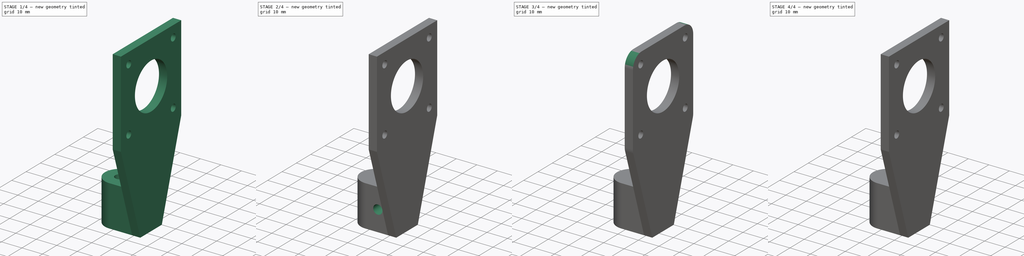
[diagram: build sequence overview — one tinted view per stage of 4, left to right]
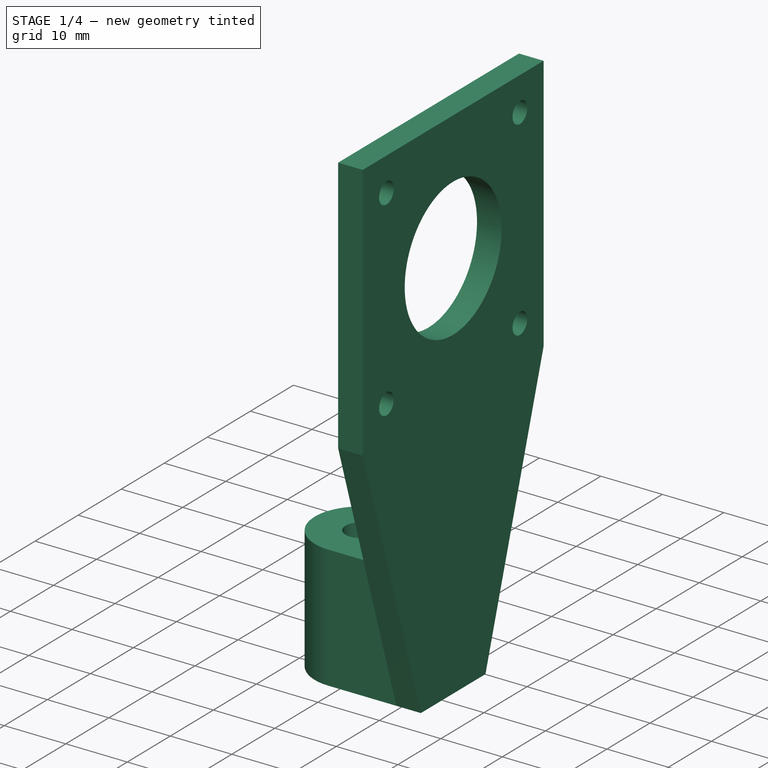
[diagram: stage 1 of 4 — iso view after this stage's code; geometry added in this stage tinted green]
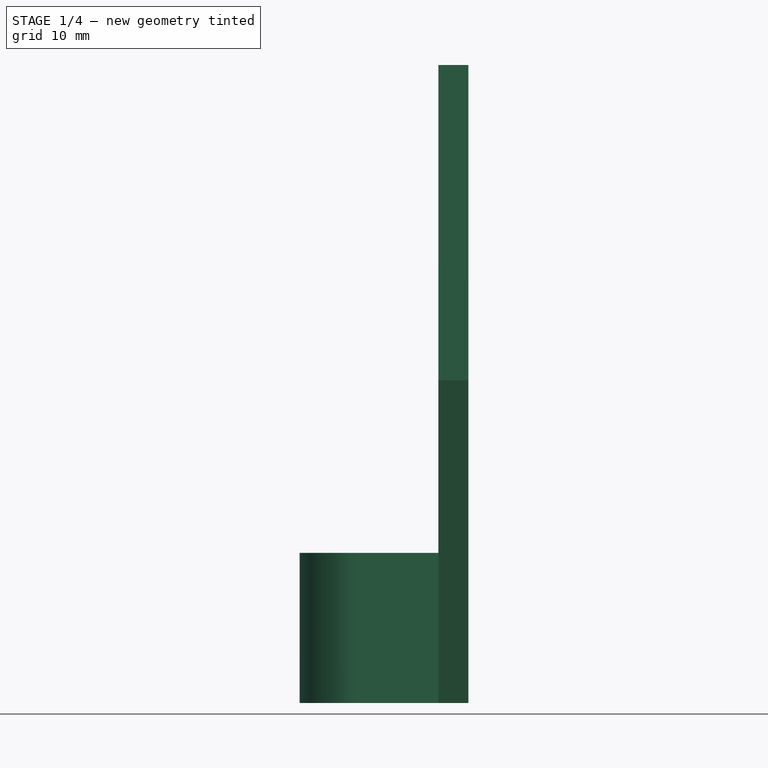
[diagram: stage 1 of 4 — front view after this stage's code; geometry added in this stage tinted green]
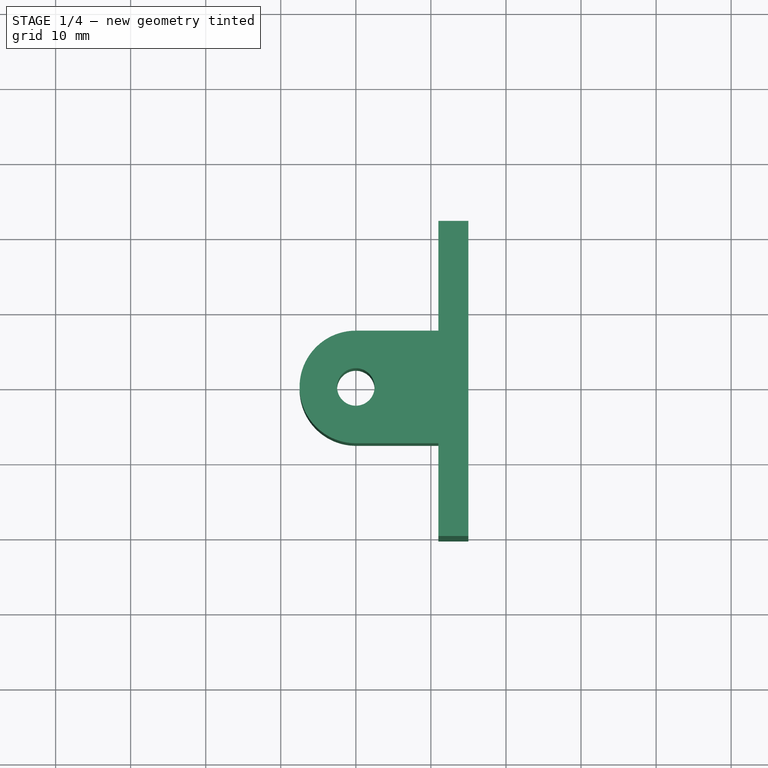
[diagram: stage 1 of 4 — top view after this stage's code; geometry added in this stage tinted green]
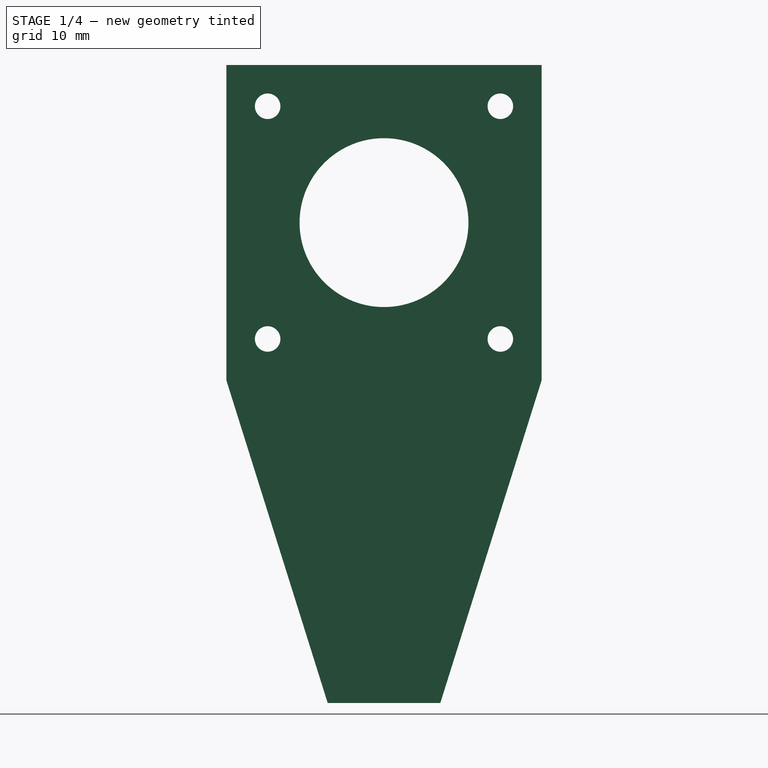
[diagram: stage 1 of 4 — right view after this stage's code; geometry added in this stage tinted green]
FCSTD DOCUMENT  (FreeCAD 2024.1R35694 (Git))
Label: arm0
License: All rights reserved
LicenseURL: https://en.wikipedia.org/wiki/All_rights_reserved
objects: Sketcher::SketchObject×11, PartDesign::Pad×6, PartDesign::Hole×3, PartDesign::Body×2, PartDesign::Pocket×2, PartDesign::Fillet×1, App::Part×1
note: 37 computed .brp shape members not serialized (recipe doc carries the construction recipe); baked Part::Feature solids carry a one-line shape summary decoded from their .brp

FEATURE [PartDesign::Body] Body  label="arm0-skel"
  Group = -> [Sketch,Pad,Sketch001,Pad001,Sketch003,Hole,Sketch004,Pad002]
  Origin = -> Origin001
  Tip = -> Pad002
FEATURE [Sketcher::SketchObject] Sketch008
  FullyConstrained = true
  MapMode = 5
  Support = -> [XY_Plane002]
  sketch-geometry (5):
    g0: Circle CenterX=0 CenterY=0 CenterZ=0 NormalX=0 NormalY=0 NormalZ=1 AngleXU=0 Radius=2.5
    g1: ArcOfCircle CenterX=0 CenterY=0 CenterZ=0 NormalX=0 NormalY=0 NormalZ=1 AngleXU=0 Radius=7.5 StartAngle=1.5708 EndAngle=4.71239
    g2: LineSegment StartX=-1.2e-15 StartY=7.5 StartZ=0 EndX=15 EndY=7.5 EndZ=0
    g3: LineSegment StartX=15 StartY=7.5 StartZ=0 EndX=15 EndY=-7.5 EndZ=0
    g4: LineSegment StartX=15 StartY=-7.5 StartZ=0 EndX=1.8e-15 EndY=-7.5 EndZ=0
  constraints (12):
    c: Coincident(g0,g-1)
    c: Coincident(g1,g0)
    c: Diameter(g0) = 5
    c: Diameter(g1) = 15
    c: Horizontal(g2)
    c: Coincident(g2,g3)
    c: Vertical(g3)
    c: Coincident(g3,g4)
    c: Horizontal(g4)
    c: Tangent(g1,g4) = 1.5708
    c: Tangent(g1,g2) = 1.5708
    c: DistanceX(g2,g2) = 15
FEATURE [PartDesign::Pad] Pad003
  Direction = (0,0,1)
  Length = 20
  Length2 = 10
  Profile = -> Sketch008
  ReferenceAxis = -> Sketch008 [N_Axis]
  Refine = true
  Type = 0
FEATURE [Sketcher::SketchObject] Sketch009
  ExternalGeometry = -> [Pad003]
  FullyConstrained = true
  MapMode = 5
  Placement = pos=(15,0,0) rot=(0.57735,0.57735,0.57735;2.0944rad)
  Support = -> [Pad003]
  sketch-geometry (8):
    g0: LineSegment StartX=-7.5 StartY=0 StartZ=0 EndX=-21 EndY=43 EndZ=0
    g1: LineSegment StartX=-21 StartY=43 StartZ=0 EndX=-21 EndY=85 EndZ=0
    g2: LineSegment StartX=-21 StartY=85 StartZ=0 EndX=21 EndY=85 EndZ=0
    g3: LineSegment StartX=21 StartY=85 StartZ=0 EndX=21 EndY=43 EndZ=0
    g4: LineSegment StartX=21 StartY=43 StartZ=0 EndX=7.5 EndY=0 EndZ=0
    g5: LineSegment StartX=7.5 StartY=0 StartZ=0 EndX=-7.5 EndY=0 EndZ=0
    g6: GeomPoint X=4.8e-15 Y=64 Z=0
    g7: Circle CenterX=4.8e-15 CenterY=64 CenterZ=0 NormalX=0 NormalY=0 NormalZ=1 AngleXU=0 Radius=11.25
  constraints (18):
    c: PointOnObject(g0,g-1)
    c: Coincident(g0,g1)
    c: Vertical(g1)
    c: Coincident(g1,g2)
    c: Coincident(g2,g3)
    c: Coincident(g3,g4)
    c: Coincident(g4,g5)
    c: Coincident(g5,g0)
    c: Symmetric(g0,g3,g-2)
    c: Symmetric(g1,g2,g-2)
    c: DistanceX(g2,g2) = 42
    c: DistanceY(g3,g3) = 42
    c: Symmetric(g0,g4,g-2)
    c: DistanceX(g5,g5) = 15
    c: Symmetric(g1,g3,g6)
    c: Coincident(g7,g6)
    c: Diameter(g7) = 22.5
    c: DistanceY(g-1,g3) = 43
FEATURE [PartDesign::Pad] Pad004
  BaseFeature = -> Pad003
  Direction = (1,0,0)
  Length = 4
  Length2 = 10
  Profile = -> Sketch009
  ReferenceAxis = -> Sketch009 [N_Axis]
  Refine = true
  Reversed = true
  Type = 0
FEATURE [Sketcher::SketchObject] Sketch010
  ExternalGeometry = -> [Pad004]
  FullyConstrained = true
  MapMode = 5
  Placement = pos=(11,0,0) rot=(0.57735,-0.57735,-0.57735;2.0944rad)
  Support = -> [Pad004]
  sketch-geometry (5):
    g0: Circle CenterX=15.5 CenterY=79.5 CenterZ=0 NormalX=0 NormalY=0 NormalZ=1 AngleXU=0 Radius=1.5
    g1: LineSegment StartX=-4.8e-15 StartY=64 StartZ=0 EndX=11.25 EndY=64 EndZ=0
    g2: Circle CenterX=-15.5 CenterY=79.5 CenterZ=0 NormalX=0 NormalY=0 NormalZ=1 AngleXU=0 Radius=1.5
    g3: Circle CenterX=15.5 CenterY=48.5 CenterZ=0 NormalX=0 NormalY=0 NormalZ=1 AngleXU=0 Radius=1.5
    g4: Circle CenterX=-15.5 CenterY=48.5 CenterZ=0 NormalX=0 NormalY=0 NormalZ=1 AngleXU=0 Radius=1.5
  constraints (12):
    c: DistanceY(g-3,g0) = 15.5
    c: DistanceX(g-3,g0) = 15.5
    c: Diameter(g0) = 3
    c: Coincident(g1,g-3)
    c: Horizontal(g1)
    c: PointOnObject(g1,g-3)
    c: Diameter(g2) = 3
    c: Diameter(g3) = 3
    c: Diameter(g4) = 3
    c: Symmetric(g2,g0,g-2)
    c: Symmetric(g4,g3,g-2)
    c: Symmetric(g3,g0,g1)
FEATURE [PartDesign::Hole] Hole002
  BaseFeature = -> Pad004
  CustomThreadClearance = 0
  Depth = 25
  DepthType = 0
  Diameter = 3.4
  DrillForDepth = false
  DrillPoint = 1
  DrillPointAngle = 118
  HoleCutCountersinkAngle = 90
  HoleCutCustomValues = false
  HoleCutDepth = 2
  HoleCutDiameter = 6.1
  HoleCutType = 1
  ModelThread = false
  Profile = -> Sketch010
  Refine = true
  Tapered = false
  TaperedAngle = 90
  ThreadClass = 0
  ThreadDepth = 25
  ThreadDepthType = 0
  ThreadDirection = 0
  ThreadFit = 0
  ThreadSize = 9
  ThreadType = 1
  Threaded = false
  UseCustomThreadClearance = false
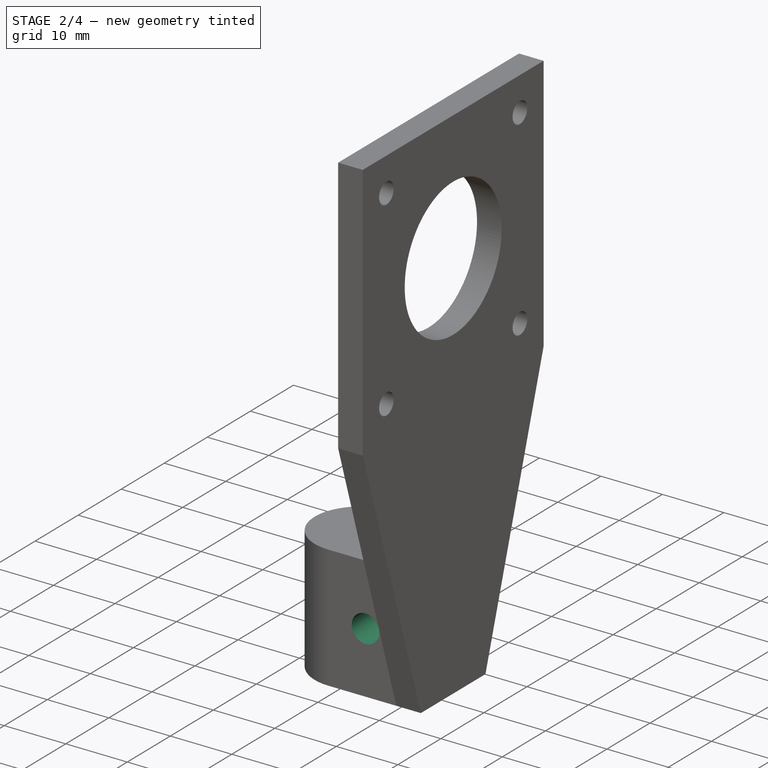
[diagram: stage 2 of 4 — iso view after this stage's code; geometry added in this stage tinted green]
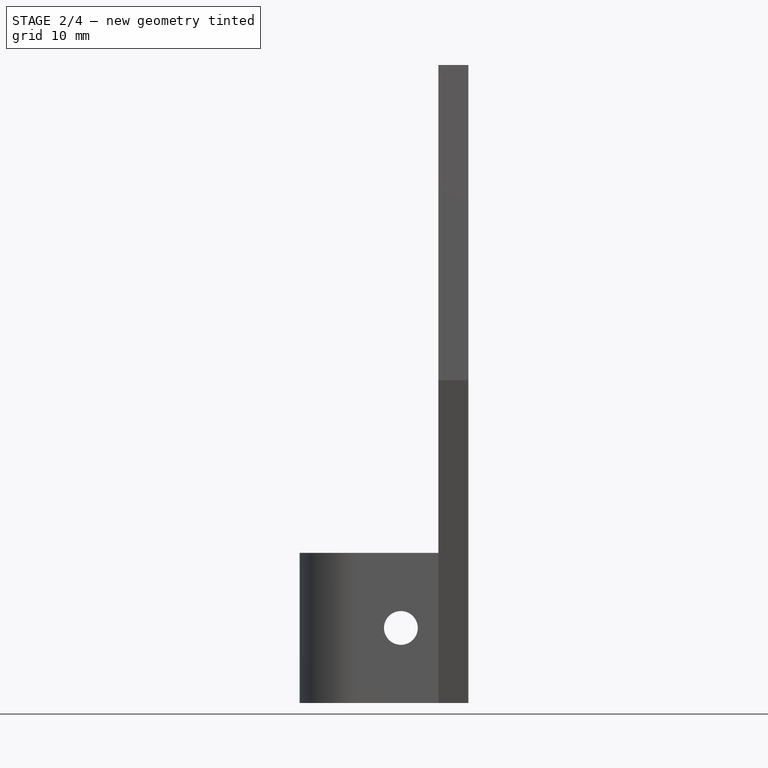
[diagram: stage 2 of 4 — front view after this stage's code; geometry added in this stage tinted green]
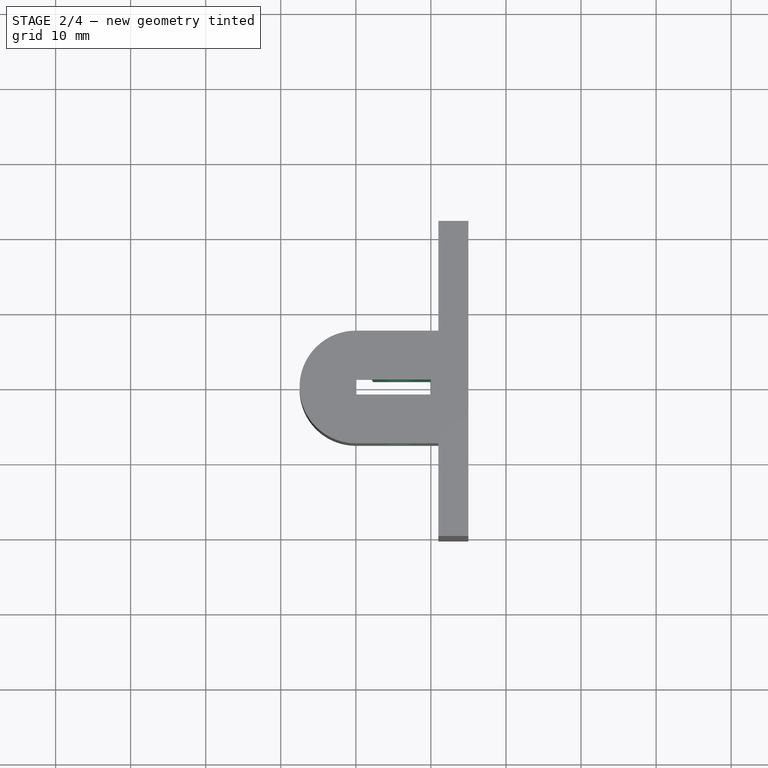
[diagram: stage 2 of 4 — top view after this stage's code; geometry added in this stage tinted green]
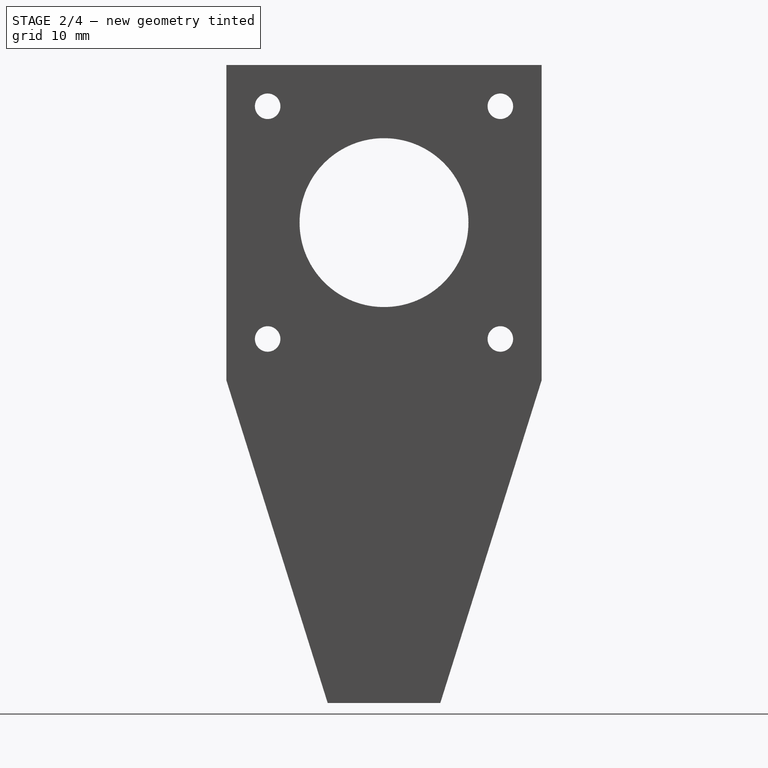
[diagram: stage 2 of 4 — right view after this stage's code; geometry added in this stage tinted green]
FEATURE [Sketcher::SketchObject] Sketch011
  ExternalGeometry = -> [Hole002]
  FullyConstrained = true
  MapMode = 5
  Placement = pos=(0,0,20) rot=(0,0,1;0rad)
  Support = -> [Hole002]
  sketch-geometry (1):
    g0: Circle CenterX=0 CenterY=0 CenterZ=0 NormalX=0 NormalY=0 NormalZ=1 AngleXU=0 Radius=2.5
  constraints (2):
    c: Coincident(g0,g-3)
    c: Equal(g0,g-3)
FEATURE [PartDesign::Pad] Pad005
  BaseFeature = -> Hole002
  Direction = (0,0,1)
  Length = 2
  Length2 = 10
  Profile = -> Sketch011
  ReferenceAxis = -> Sketch011 [N_Axis]
  Refine = true
  Reversed = true
  Type = 0
FEATURE [Sketcher::SketchObject] Sketch012
  FullyConstrained = true
  MapMode = 5
  Placement = pos=(0,0,0) rot=(1,0,0;3.14159rad)
  Support = -> [Pad005]
  sketch-geometry (4):
    g0: LineSegment StartX=0 StartY=1 StartZ=0 EndX=0 EndY=-1 EndZ=0
    g1: LineSegment StartX=0 StartY=-1 StartZ=0 EndX=10 EndY=-1 EndZ=0
    g2: LineSegment StartX=10 StartY=-1 StartZ=0 EndX=10 EndY=1 EndZ=0
    g3: LineSegment StartX=10 StartY=1 StartZ=0 EndX=0 EndY=1 EndZ=0
  constraints (11):
    c: Coincident(g0,g1)
    c: Coincident(g1,g2)
    c: Coincident(g2,g3)
    c: Coincident(g3,g0)
    c: Vertical(g0)
    c: Horizontal(g1)
    c: Horizontal(g3)
    c: PointOnObject(g0,g-2)
    c: Symmetric(g1,g2,g-1)
    c: DistanceY(g2,g2) = 2
    c: DistanceX(g3,g3) = 10
FEATURE [PartDesign::Pocket] Pocket002
  BaseFeature = -> Pad005
  Direction = (0,0,1)
  Length = 5
  Length2 = 5
  Profile = -> Sketch012
  ReferenceAxis = -> Sketch012 [N_Axis]
  Refine = true
  Type = 1
FEATURE [Sketcher::SketchObject] Sketch013
  FullyConstrained = true
  MapMode = 5
  Placement = pos=(0,-7.5,0) rot=(1,0,0;1.5708rad)
  Support = -> [Pocket002]
  sketch-geometry (1):
    g0: Circle CenterX=6 CenterY=10 CenterZ=0 NormalX=0 NormalY=0 NormalZ=1 AngleXU=0 Radius=1.5
  constraints (3):
    c: DistanceY(g-1,g0) = 10
    c: DistanceX(g-1,g0) = 6
    c: Diameter(g0) = 3
FEATURE [PartDesign::Hole] Hole003
  BaseFeature = -> Pocket002
  CustomThreadClearance = 0
  Depth = 25
  DepthType = 0
  Diameter = 4.5
  DrillForDepth = false
  DrillPoint = 1
  DrillPointAngle = 118
  HoleCutCountersinkAngle = 90
  HoleCutCustomValues = false
  HoleCutDepth = 0
  HoleCutDiameter = 6.1
  HoleCutType = 0
  ModelThread = false
  Profile = -> Sketch013
  Refine = true
  Tapered = false
  TaperedAngle = 90
  ThreadClass = 0
  ThreadDepth = 25
  ThreadDepthType = 0
  ThreadDirection = 0
  ThreadFit = 0
  ThreadSize = 11
  ThreadType = 1
  Threaded = false
  UseCustomThreadClearance = false
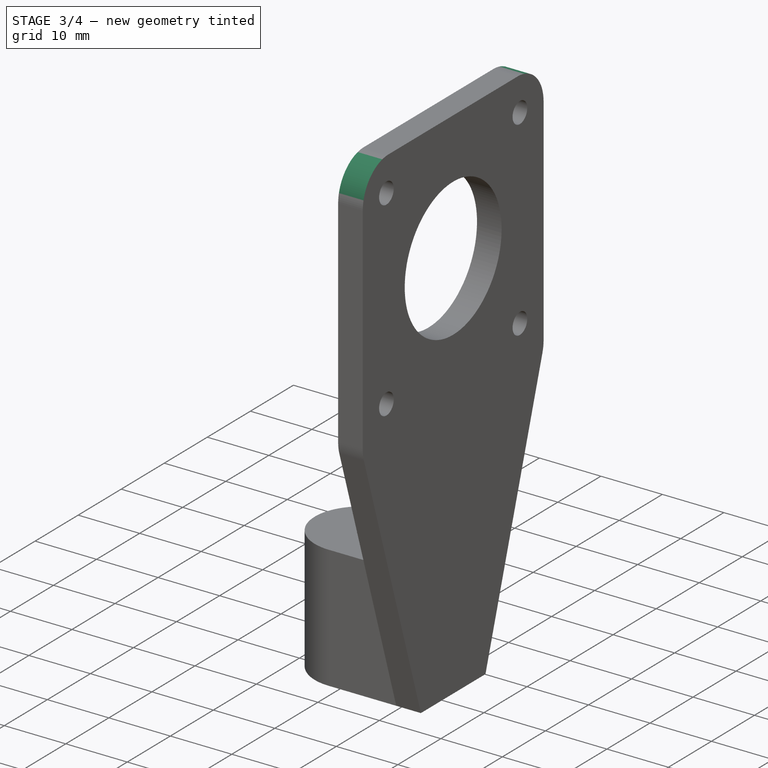
[diagram: stage 3 of 4 — iso view after this stage's code; geometry added in this stage tinted green]
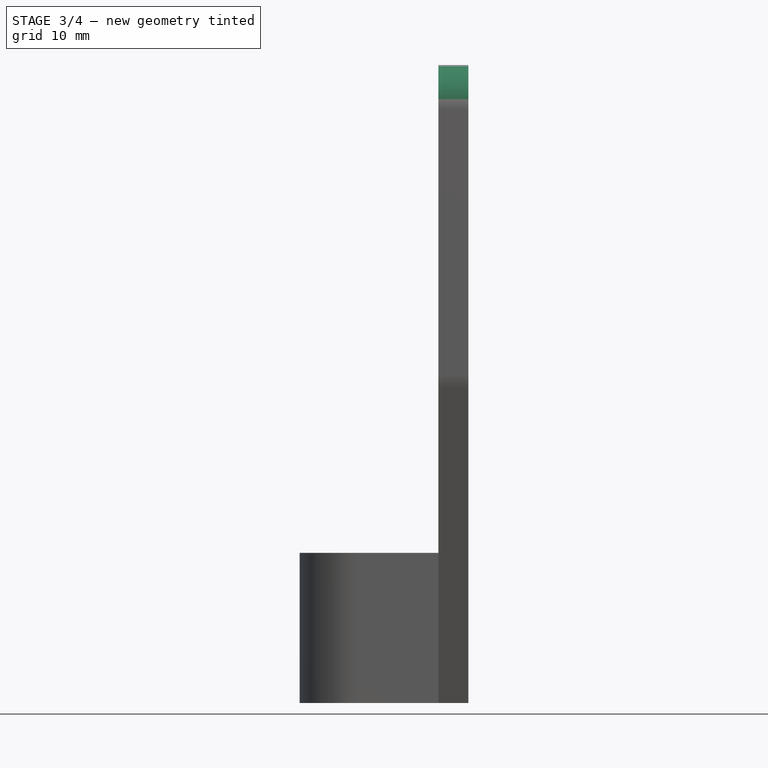
[diagram: stage 3 of 4 — front view after this stage's code; geometry added in this stage tinted green]
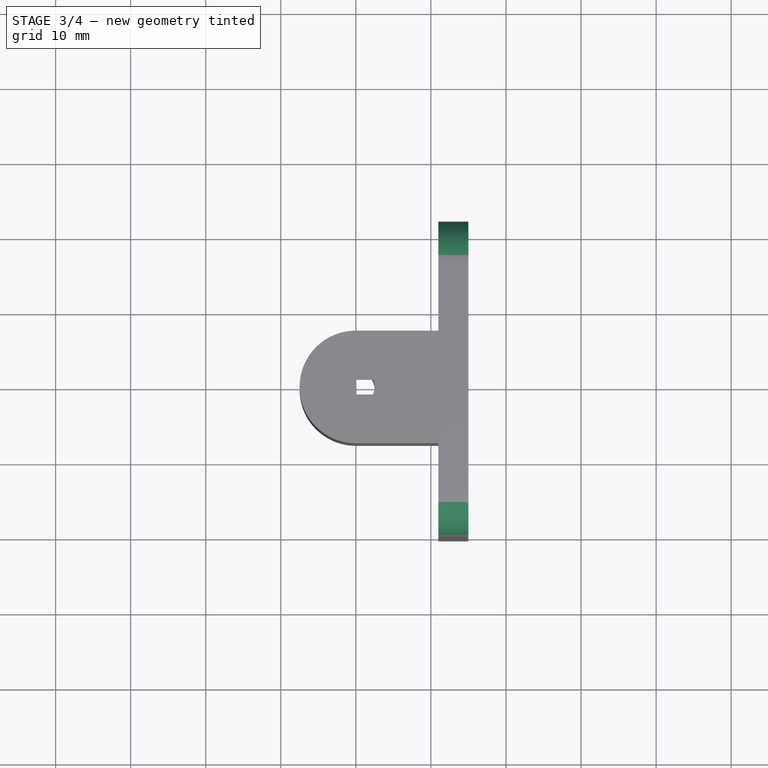
[diagram: stage 3 of 4 — top view after this stage's code; geometry added in this stage tinted green]
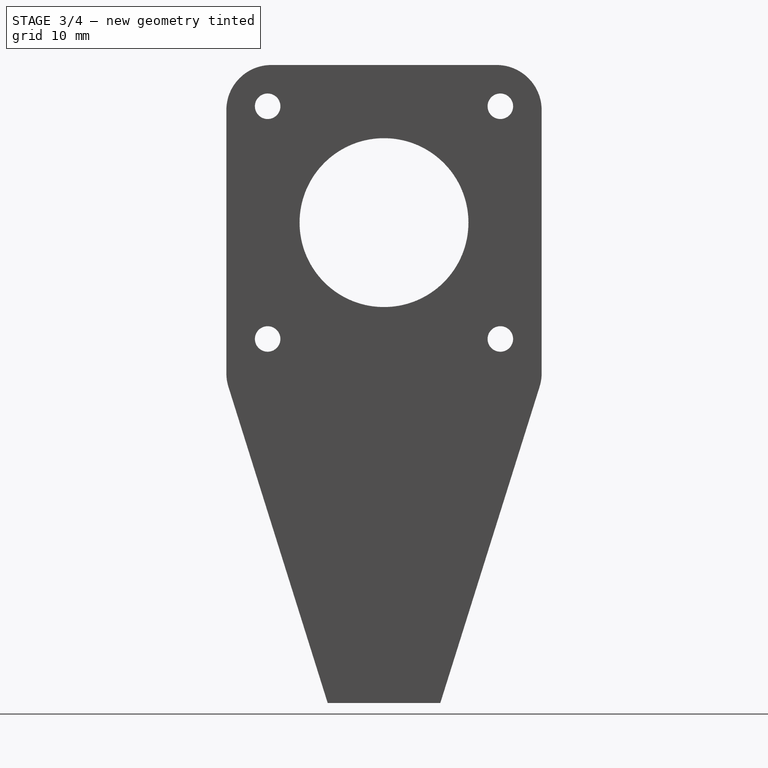
[diagram: stage 3 of 4 — right view after this stage's code; geometry added in this stage tinted green]
FEATURE [Sketcher::SketchObject] Sketch
  FullyConstrained = true
  MapMode = 5
  Support = -> [XY_Plane001]
  sketch-geometry (5):
    g0: Circle CenterX=0 CenterY=0 CenterZ=0 NormalX=0 NormalY=0 NormalZ=1 AngleXU=0 Radius=2.5
    g1: ArcOfCircle CenterX=0 CenterY=0 CenterZ=0 NormalX=0 NormalY=0 NormalZ=1 AngleXU=0 Radius=7.5 StartAngle=1.5708 EndAngle=4.71239
    g2: LineSegment StartX=-1.2e-15 StartY=7.5 StartZ=0 EndX=15 EndY=7.5 EndZ=0
    g3: LineSegment StartX=15 StartY=7.5 StartZ=0 EndX=15 EndY=-7.5 EndZ=0
    g4: LineSegment StartX=15 StartY=-7.5 StartZ=0 EndX=1.8e-15 EndY=-7.5 EndZ=0
  constraints (12):
    c: Coincident(g0,g-1)
    c: Coincident(g1,g0)
    c: Diameter(g0) = 5
    c: Diameter(g1) = 15
    c: Horizontal(g2)
    c: Coincident(g2,g3)
    c: Vertical(g3)
    c: Coincident(g3,g4)
    c: Horizontal(g4)
    c: Tangent(g1,g4) = 1.5708
    c: Tangent(g1,g2) = 1.5708
    c: DistanceX(g2,g2) = 15
FEATURE [PartDesign::Pad] Pad
  Direction = (0,0,1)
  Length = 20
  Length2 = 10
  Profile = -> Sketch
  ReferenceAxis = -> Sketch [N_Axis]
  Refine = true
  Type = 0
FEATURE [Sketcher::SketchObject] Sketch014
  ExternalGeometry = -> [Hole003]
  FullyConstrained = true
  MapMode = 5
  Placement = pos=(0,7.5,0) rot=(0,0.707107,0.707107;3.14159rad)
  Support = -> [Hole003]
  sketch-geometry (7):
    g0: LineSegment StartX=-1.95855 StartY=10 StartZ=0 EndX=-3.97927 EndY=13.5 EndZ=0
    g1: LineSegment StartX=-3.97927 StartY=13.5 StartZ=0 EndX=-8.02073 EndY=13.5 EndZ=0
    g2: LineSegment StartX=-8.02073 StartY=13.5 StartZ=0 EndX=-10.0415 EndY=10 EndZ=0
    g3: LineSegment StartX=-10.0415 StartY=10 StartZ=0 EndX=-8.02073 EndY=6.5 EndZ=0
    g4: LineSegment StartX=-8.02073 StartY=6.5 StartZ=0 EndX=-3.97927 EndY=6.5 EndZ=0
    g5: LineSegment StartX=-3.97927 StartY=6.5 StartZ=0 EndX=-1.95855 EndY=10 EndZ=0
    g6: Circle CenterX=-6 CenterY=10 CenterZ=0 NormalX=0 NormalY=0 NormalZ=1 AngleXU=0 Radius=4.04145
  constraints (16):
    c: Coincident(g0,g1)
    c: Coincident(g1,g2)
    c: Coincident(g2,g3)
    c: Coincident(g3,g4)
    c: Coincident(g4,g5)
    c: Coincident(g5,g0)
    c: Equal(g0, g1-g5) x5
    c: PointOnObject(g0,g6)
    c: PointOnObject(g1,g6)
    c: PointOnObject(g2,g6)
    c: PointOnObject(g3,g6)
    c: PointOnObject(g4,g6)
    c: PointOnObject(g5,g6)
    c: Coincident(g6,g-3)
    c: Horizontal(g1)
    c: DistanceY(g4,g0) = 7
FEATURE [PartDesign::Pocket] Pocket003
  BaseFeature = -> Hole003
  Direction = (0,-1,2e-16)
  Length = 4
  Length2 = 5
  Profile = -> Sketch014
  ReferenceAxis = -> Sketch014 [N_Axis]
  Refine = true
  Type = 0
FEATURE [PartDesign::Fillet] Fillet
  Base = -> Pocket003 [Edge77,Edge78,Edge65,Edge54]
  BaseFeature = -> Pocket003
  Radius = 6
  Refine = true
  SupportTransform = false
  UseAllEdges = false
FEATURE [PartDesign::Body] Body001  label="arm0s"
  Group = -> [Sketch008,Pad003,Sketch009,Pad004,Sketch010,Hole002,Sketch011,Pad005,Sketch012,Pocket002,Sketch013,Hole003,Sketch014,Pocket003,Fillet]
  Origin = -> Origin002
  Tip = -> Fillet
FEATURE [App::Part] Part  label="arm0"
  Group = -> [Body,Body001]
  Origin = -> Origin
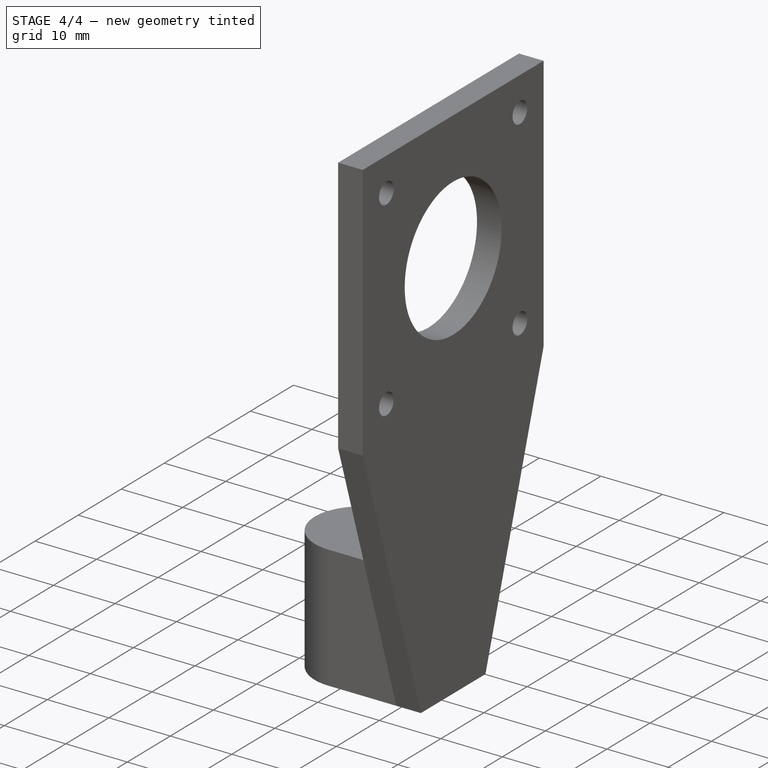
[diagram: stage 4 of 4 — iso view after this stage's code; geometry added in this stage tinted green]
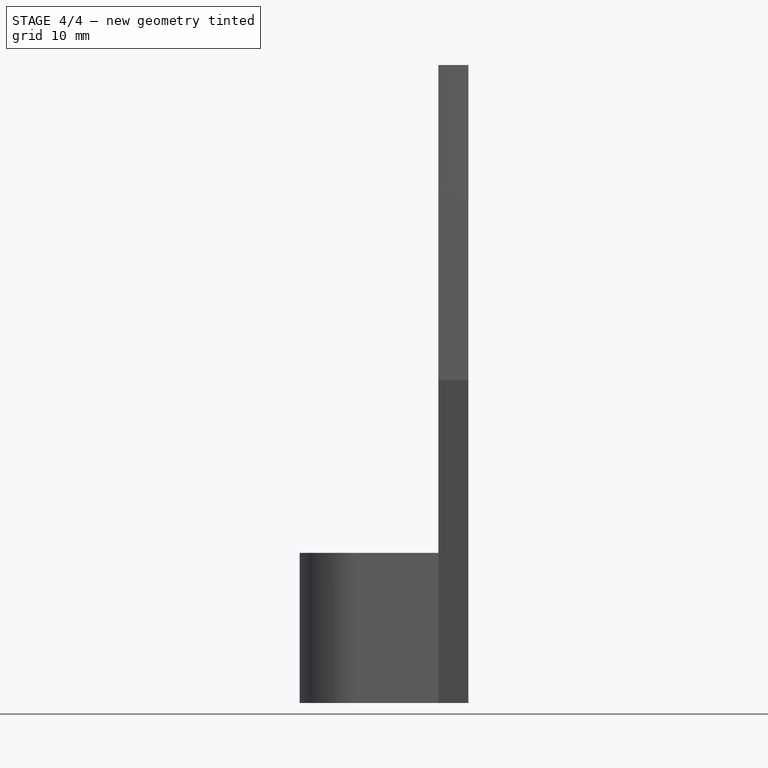
[diagram: stage 4 of 4 — front view after this stage's code; geometry added in this stage tinted green]
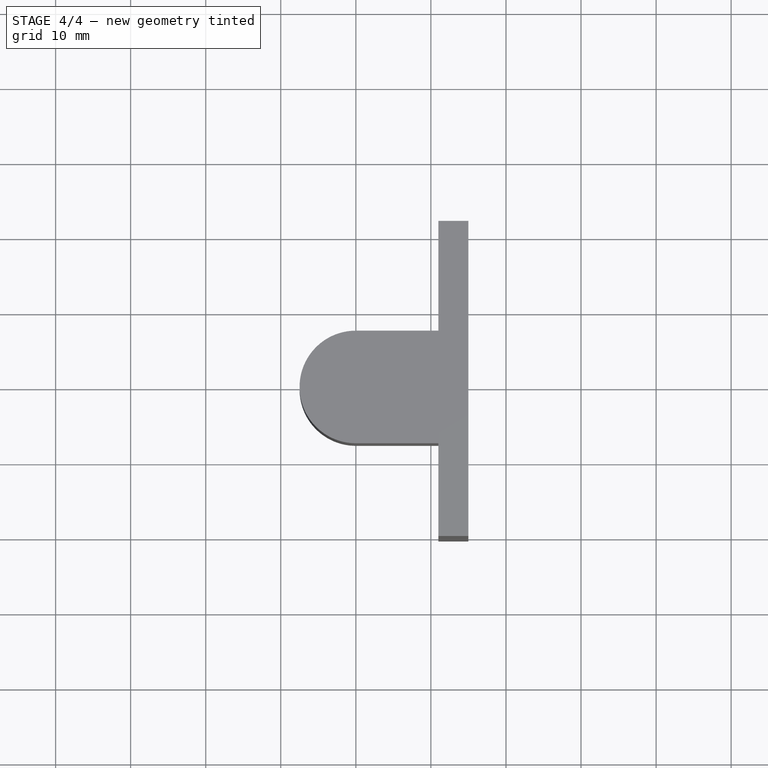
[diagram: stage 4 of 4 — top view after this stage's code; geometry added in this stage tinted green]
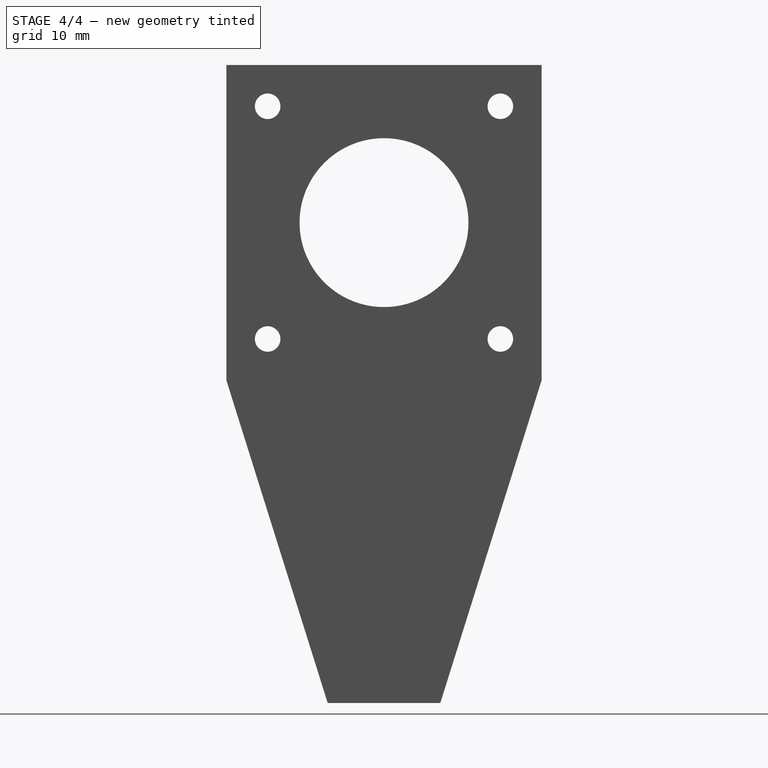
[diagram: stage 4 of 4 — right view after this stage's code; geometry added in this stage tinted green]
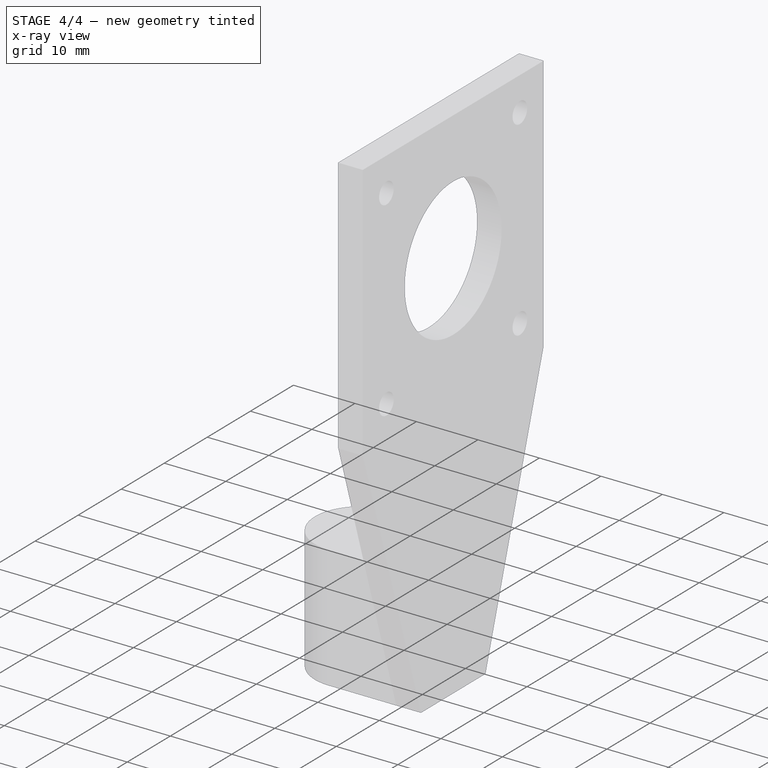
[diagram: stage 4 of 4 — x-ray composite at the iso view; earlier geometry ghosted, this stage's added geometry solid]
FEATURE [Sketcher::SketchObject] Sketch001
  ExternalGeometry = -> [Pad]
  FullyConstrained = true
  MapMode = 5
  Placement = pos=(15,0,0) rot=(0.57735,0.57735,0.57735;2.0944rad)
  Support = -> [Pad]
  sketch-geometry (8):
    g0: LineSegment StartX=-7.5 StartY=0 StartZ=0 EndX=-21 EndY=43 EndZ=0
    g1: LineSegment StartX=-21 StartY=43 StartZ=0 EndX=-21 EndY=85 EndZ=0
    g2: LineSegment StartX=-21 StartY=85 StartZ=0 EndX=21 EndY=85 EndZ=0
    g3: LineSegment StartX=21 StartY=85 StartZ=0 EndX=21 EndY=43 EndZ=0
    g4: LineSegment StartX=21 StartY=43 StartZ=0 EndX=7.5 EndY=0 EndZ=0
    g5: LineSegment StartX=7.5 StartY=0 StartZ=0 EndX=-7.5 EndY=0 EndZ=0
    g6: GeomPoint X=5.2e-15 Y=64 Z=0
    g7: Circle CenterX=5.2e-15 CenterY=64 CenterZ=0 NormalX=0 NormalY=0 NormalZ=1 AngleXU=0 Radius=11.25
  constraints (18):
    c: PointOnObject(g0,g-1)
    c: Coincident(g0,g1)
    c: Vertical(g1)
    c: Coincident(g1,g2)
    c: Coincident(g2,g3)
    c: Coincident(g3,g4)
    c: Coincident(g4,g5)
    c: Coincident(g5,g0)
    c: Symmetric(g0,g3,g-2)
    c: Symmetric(g1,g2,g-2)
    c: DistanceX(g2,g2) = 42
    c: DistanceY(g3,g3) = 42
    c: Symmetric(g0,g4,g-2)
    c: DistanceX(g5,g5) = 15
    c: Symmetric(g1,g3,g6)
    c: Coincident(g7,g6)
    c: Diameter(g7) = 22.5
    c: DistanceY(g-1,g3) = 43
FEATURE [PartDesign::Pad] Pad001
  BaseFeature = -> Pad
  Direction = (1,0,0)
  Length = 4
  Length2 = 10
  Profile = -> Sketch001
  ReferenceAxis = -> Sketch001 [N_Axis]
  Refine = true
  Reversed = true
  Type = 0
FEATURE [Sketcher::SketchObject] Sketch003
  ExternalGeometry = -> [Pad001]
  FullyConstrained = true
  MapMode = 5
  Placement = pos=(11,0,0) rot=(0.57735,-0.57735,-0.57735;2.0944rad)
  Support = -> [Pad001]
  sketch-geometry (5):
    g0: Circle CenterX=15.5 CenterY=79.5 CenterZ=0 NormalX=0 NormalY=0 NormalZ=1 AngleXU=0 Radius=1.5
    g1: LineSegment StartX=-5.2e-15 StartY=64 StartZ=0 EndX=11.25 EndY=64 EndZ=0
    g2: Circle CenterX=-15.5 CenterY=79.5 CenterZ=0 NormalX=0 NormalY=0 NormalZ=1 AngleXU=0 Radius=1.5
    g3: Circle CenterX=15.5 CenterY=48.5 CenterZ=0 NormalX=0 NormalY=0 NormalZ=1 AngleXU=0 Radius=1.5
    g4: Circle CenterX=-15.5 CenterY=48.5 CenterZ=0 NormalX=0 NormalY=0 NormalZ=1 AngleXU=0 Radius=1.5
  constraints (12):
    c: DistanceY(g-3,g0) = 15.5
    c: DistanceX(g-3,g0) = 15.5
    c: Diameter(g0) = 3
    c: Coincident(g1,g-3)
    c: Horizontal(g1)
    c: PointOnObject(g1,g-3)
    c: Diameter(g2) = 3
    c: Diameter(g3) = 3
    c: Diameter(g4) = 3
    c: Symmetric(g2,g0,g-2)
    c: Symmetric(g4,g3,g-2)
    c: Symmetric(g3,g0,g1)
FEATURE [PartDesign::Hole] Hole
  BaseFeature = -> Pad001
  CustomThreadClearance = 0
  Depth = 25
  DepthType = 0
  Diameter = 3.4
  DrillForDepth = false
  DrillPoint = 1
  DrillPointAngle = 118
  HoleCutCountersinkAngle = 90
  HoleCutCustomValues = false
  HoleCutDepth = 2
  HoleCutDiameter = 6.1
  HoleCutType = 1
  ModelThread = false
  Profile = -> Sketch003
  Refine = true
  Tapered = false
  TaperedAngle = 90
  ThreadClass = 0
  ThreadDepth = 25
  ThreadDepthType = 0
  ThreadDirection = 0
  ThreadFit = 0
  ThreadSize = 9
  ThreadType = 1
  Threaded = false
  UseCustomThreadClearance = false
FEATURE [Sketcher::SketchObject] Sketch004
  ExternalGeometry = -> [Hole]
  FullyConstrained = true
  MapMode = 5
  Placement = pos=(0,0,20) rot=(0,0,1;0rad)
  Support = -> [Hole]
  sketch-geometry (1):
    g0: Circle CenterX=0 CenterY=0 CenterZ=0 NormalX=0 NormalY=0 NormalZ=1 AngleXU=0 Radius=2.5
  constraints (2):
    c: Coincident(g0,g-3)
    c: Equal(g0,g-3)
FEATURE [PartDesign::Pad] Pad002
  BaseFeature = -> Hole
  Direction = (0,0,1)
  Length = 2
  Length2 = 10
  Profile = -> Sketch004
  ReferenceAxis = -> Sketch004 [N_Axis]
  Refine = true
  Reversed = true
  Type = 0
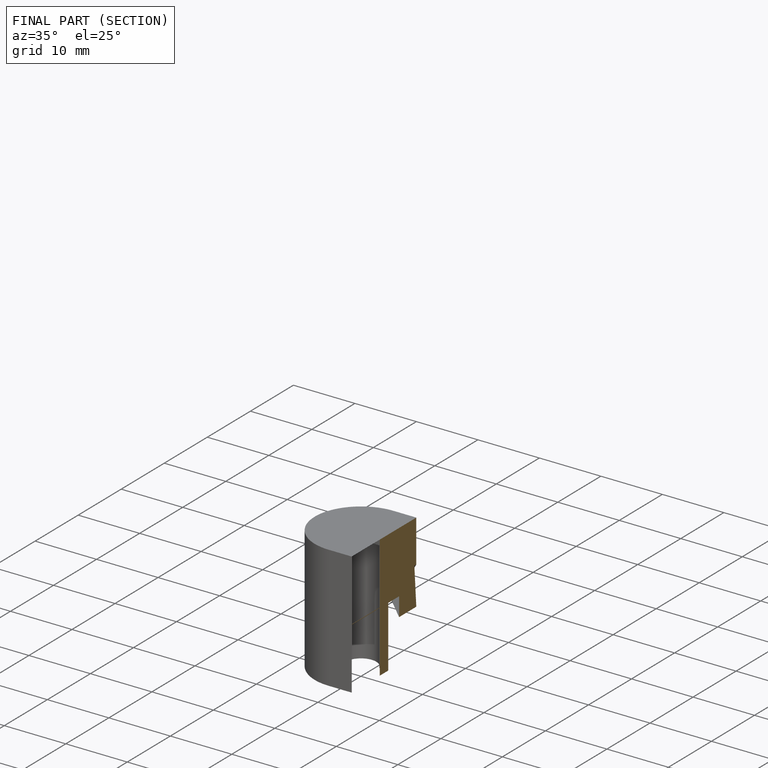
[diagram: finished part — half-section view (interior)]
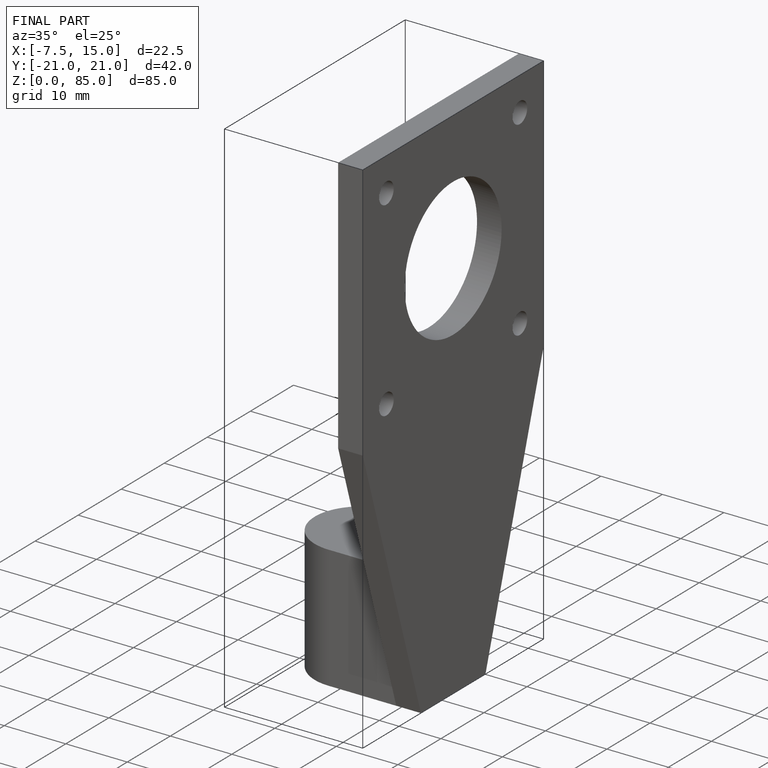
[diagram: finished part — iso view with bounding-box wireframe]
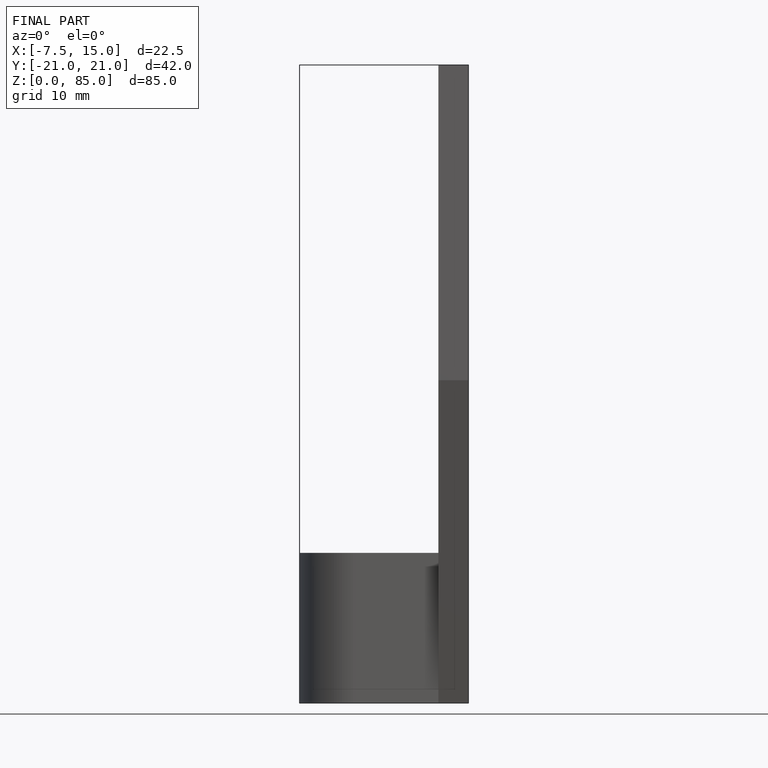
[diagram: finished part — front view with bounding-box wireframe]
